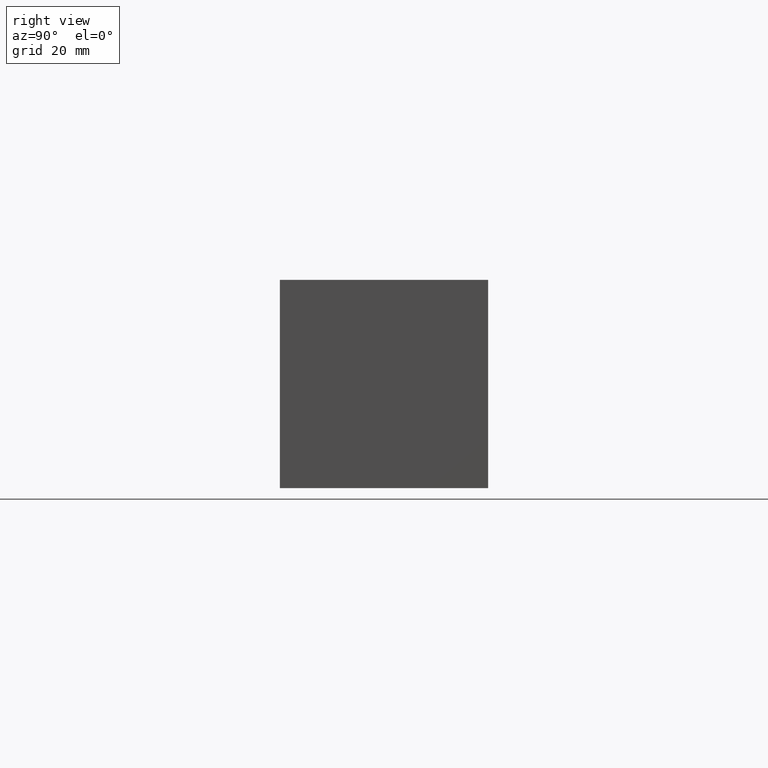
[diagram: clean part render]
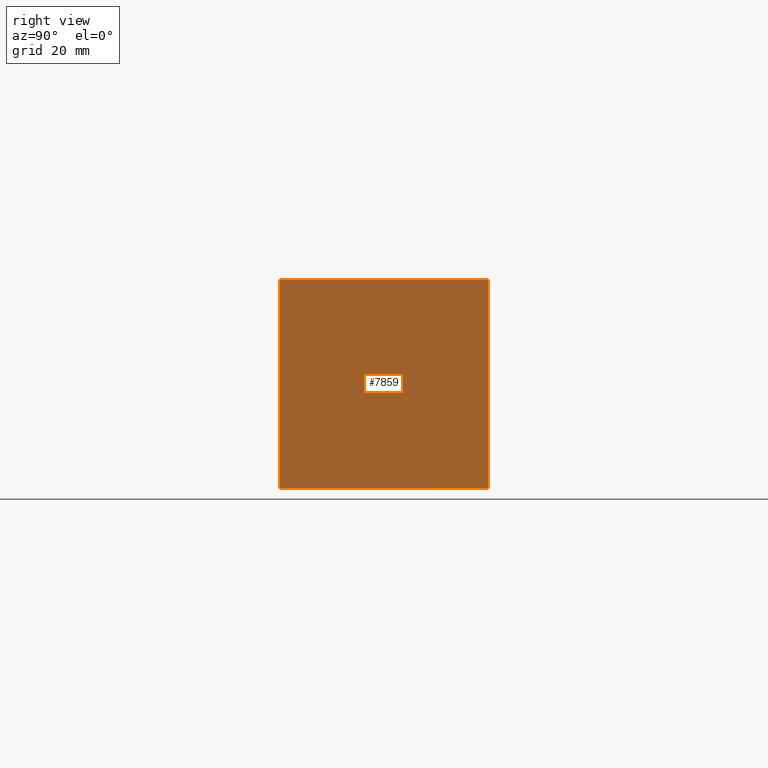
[diagram: same view with one face highlighted and labeled with its STEP entity id]
A machine part, right view. The second image highlights one B-rep face of the part: STEP entity #7859.
In plain terms, the highlighted planar face has unit normal (1, 0, 0).
Its self-contained STEP definition (entity closure, byte-faithful):
#490=PLANE('',#8299);
#892=FACE_OUTER_BOUND('',#1341,.T.);
#1341=EDGE_LOOP('',(#7008,#7009,#7010,#7011));
#1619=LINE('',#12244,#2339);
#2068=LINE('',#13607,#2788);
#2069=LINE('',#13610,#2789);
#2070=LINE('',#13611,#2790);
#2339=VECTOR('',#8700,10.);
#2788=VECTOR('',#9865,10.);
#2789=VECTOR('',#9868,10.);
#2790=VECTOR('',#9869,10.);
#3348=VERTEX_POINT('',#12241);
#3349=VERTEX_POINT('',#12243);
#3751=VERTEX_POINT('',#13605);
#3752=VERTEX_POINT('',#13609);
#4234=EDGE_CURVE('',#3348,#3349,#1619,.T.);
#4843=EDGE_CURVE('',#3751,#3349,#2068,.T.);
#4844=EDGE_CURVE('',#3752,#3751,#2069,.T.);
#4845=EDGE_CURVE('',#3752,#3348,#2070,.T.);
#7008=ORIENTED_EDGE('',*,*,#4844,.T.);
#7009=ORIENTED_EDGE('',*,*,#4843,.T.);
#7010=ORIENTED_EDGE('',*,*,#4234,.F.);
#7011=ORIENTED_EDGE('',*,*,#4845,.F.);
#7859=ADVANCED_FACE('',(#892),#490,.T.);
#8299=AXIS2_PLACEMENT_3D('',#13608,#9866,#9867);
#8700=DIRECTION('',(0.,1.,0.));
#9865=DIRECTION('',(0.,0.,1.));
#9866=DIRECTION('center_axis',(1.,0.,0.));
#9867=DIRECTION('ref_axis',(0.,1.,0.));
#9868=DIRECTION('',(0.,1.,0.));
#9869=DIRECTION('',(0.,0.,1.));
#12241=CARTESIAN_POINT('',(142.875,0.,44.45));
#12243=CARTESIAN_POINT('',(142.875,44.45,44.45));
#12244=CARTESIAN_POINT('',(142.875,0.,44.45));
#13605=CARTESIAN_POINT('',(142.875,44.45,0.));
#13607=CARTESIAN_POINT('',(142.875,44.45,0.));
#13608=CARTESIAN_POINT('Origin',(142.875,0.,0.));
#13609=CARTESIAN_POINT('',(142.875,0.,0.));
#13610=CARTESIAN_POINT('',(142.875,0.,0.));
#13611=CARTESIAN_POINT('',(142.875,0.,0.));